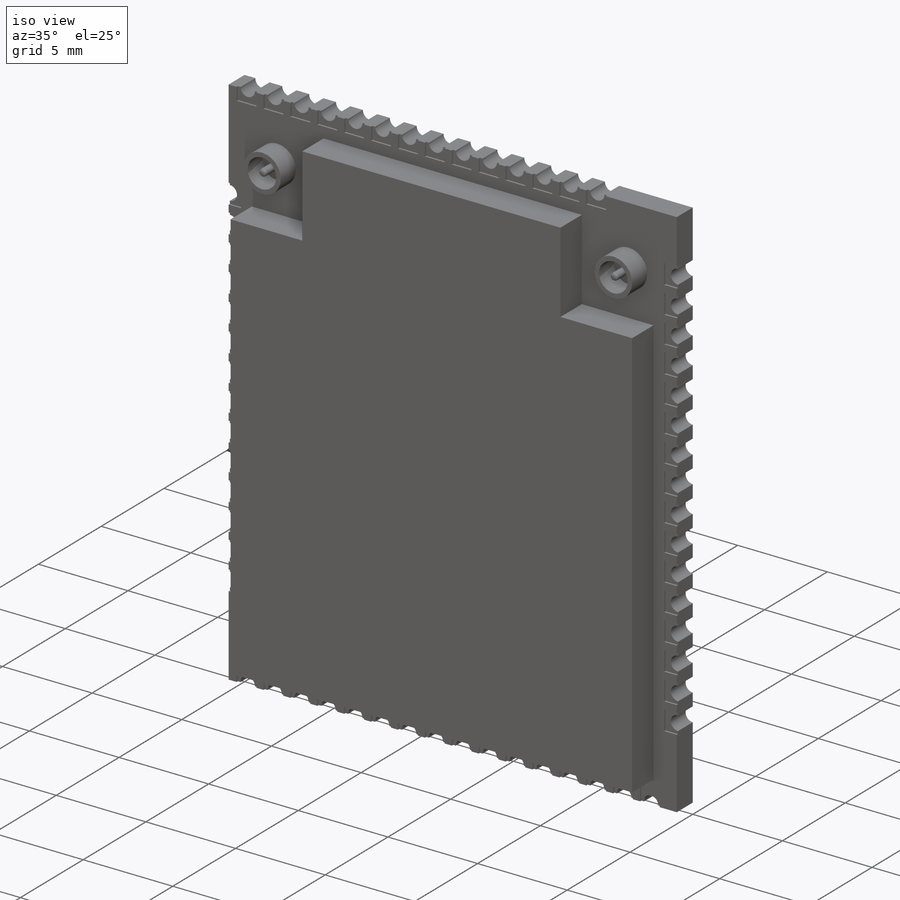
[diagram: iso view]
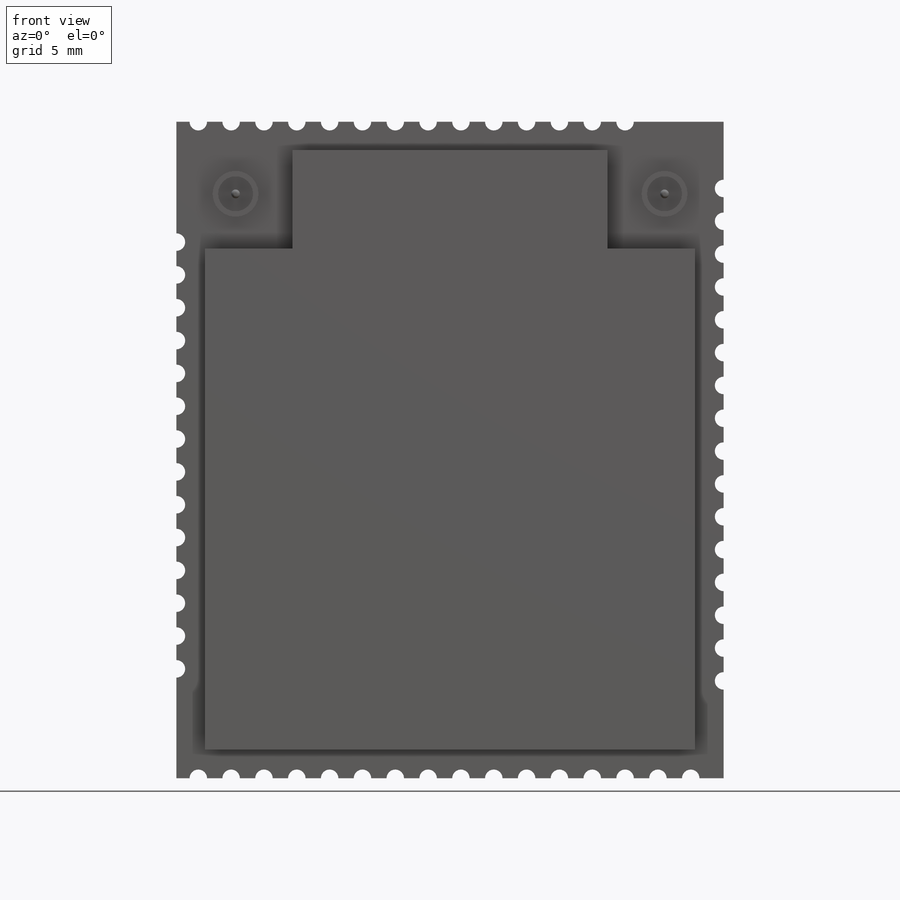
[diagram: front view]
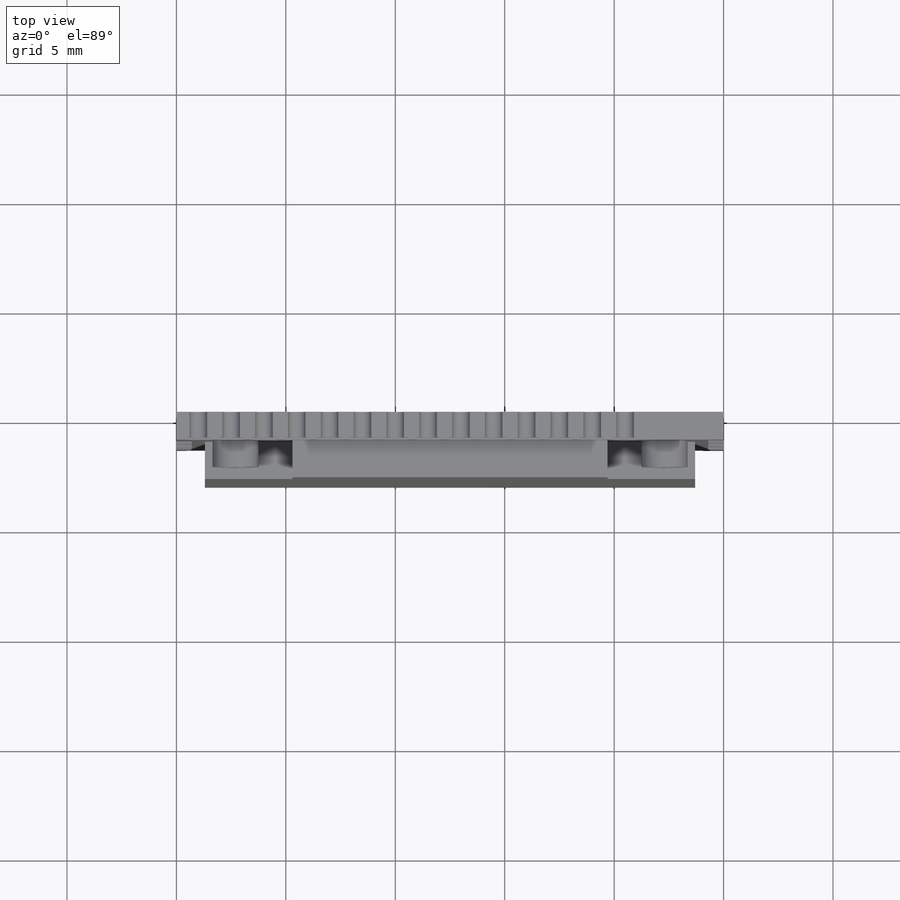
[diagram: top view]
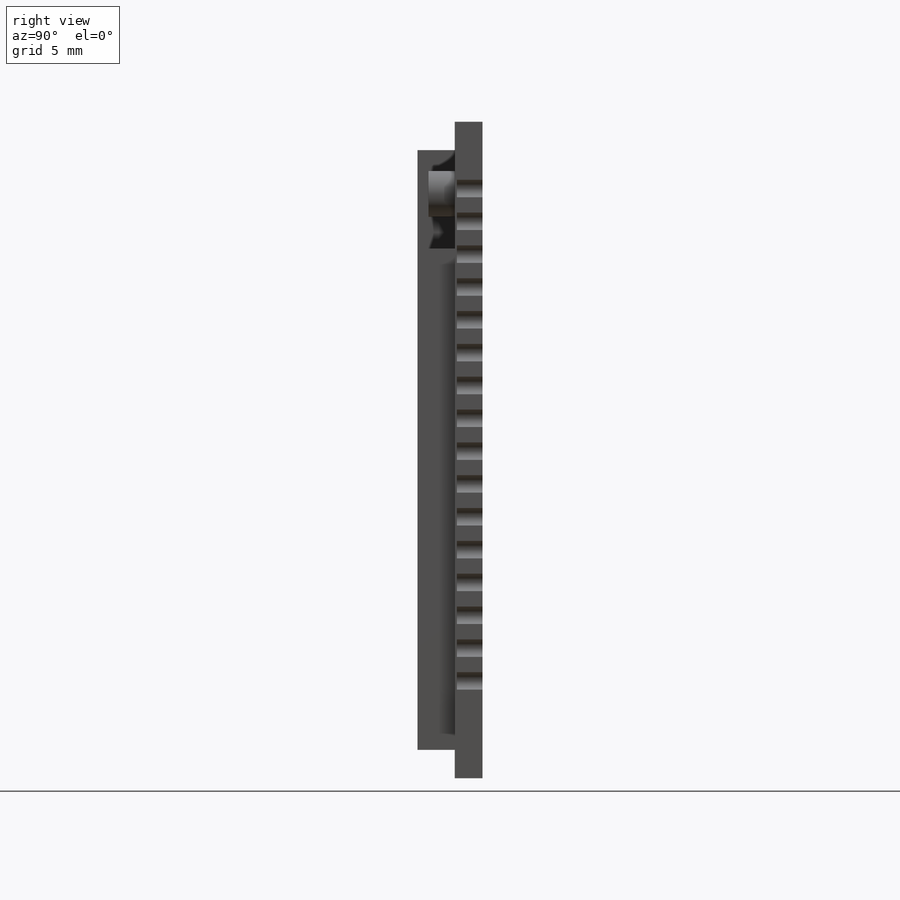
[diagram: right view]
SOLIDWORKS PART (.sldprt)
format: sldprt  version: not decoded by parser v0  size: 1,089,024 bytes
history: native  units: mm
features: sketch x11, cut_extrude x8, plane x4, pattern_linear x4, extrude x3, material x1, fillet x1, mirror x1 (+13 scaffold rows collapsed)
feature tree (46):
  scaffold x13  (default folders/planes/origin — collapsed)
  material  "Material <not specified>"
  sketch  "Sketch1"  dims[D1=30.0mm D2=25.0mm]
  extrude  "Boss-Extrude1"  Depth=1.27mm
  sketch  "Sketch2"  dims[D1=1.3mm D2=1.3mm D3=1.3mm D4=1.3mm D5=4.5mm D6=4.0mm D7=4.5mm D8=4.0mm]
  extrude  "Boss-Extrude2"  Depth=1.7mm
  sketch  "Sketch3"  dims[D3=0.4mm D4=2.1mm D5=1.6mm D1=3.3mm D2=2.7mm]
  extrude  "Boss-Extrude3"  Depth=1.2mm
  fillet  "Fillet1"  Radius=0.15mm
  plane  "Plane1"  Offset=12.5mm
  mirror  "Mirror1"
  plane  "Plane2"  Offset=5mm
  plane  "Plane3"  Offset=4.45mm
  plane  "Plane4"  Offset=1mm
  sketch  "Sketch4"  dims[D1=0.4mm]
  cut_extrude  "Cut-Extrude1"  [1 undecoded]
  sketch  "Sketch5"  dims[D1=1.1mm D2=0.7mm]
  cut_extrude  "Cut-Extrude2"  Depth=0.1mm
  pattern_linear  "LPattern1"  Count1=14 Count2=1 Spacing1=1.5mm Spacing2=10mm
  sketch  "Sketch6"  dims[D1=0.4mm]
  cut_extrude  "Cut-Extrude3"  [1 undecoded]
  sketch  "Sketch7"  dims[D1=0.7mm D2=1.1mm]
  cut_extrude  "Cut-Extrude4"  Depth=0.1mm
  sketch  "Sketch9"  dims[D1=0.4mm]
  cut_extrude  "Cut-Extrude5"  [1 undecoded]
  sketch  "Sketch10"  dims[D1=0.7mm D2=1.1mm]
  cut_extrude  "Cut-Extrude6"  Depth=0.1mm
  sketch  "Sketch11"  dims[D1=0.4mm]
  cut_extrude  "Cut-Extrude7"  [1 undecoded]
  sketch  "Sketch12"  dims[D1=1.1mm D2=0.7mm]
  cut_extrude  "Cut-Extrude8"  Depth=0.1mm
  pattern_linear  "LPattern2"  Count1=16 Count2=1 Spacing1=1.5mm Spacing2=10mm
  pattern_linear  "LPattern3"  Count1=16 Count2=1 Spacing1=1.5mm Spacing2=10mm
  pattern_linear  "LPattern4"  Count1=14 Count2=1 Spacing1=1.5mm Spacing2=10mm
decode coverage: 23 of 28 modeling features carry decoded parameters
note: 4 parameter values undecoded
summary: no parameter record found for 4 features
note: suppression state not decoded; provenance and decode notes live in map.json
